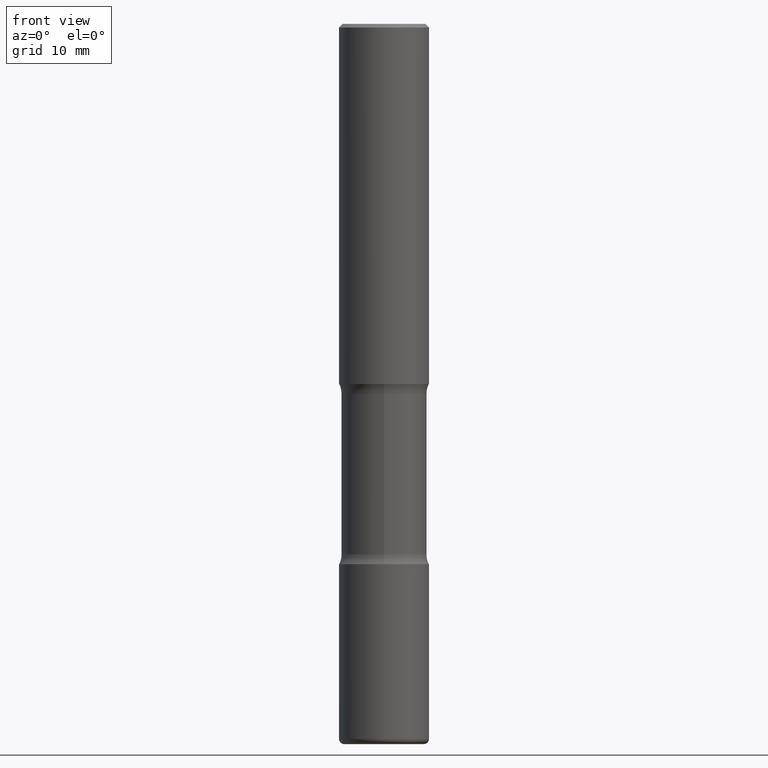
[diagram: clean part render]
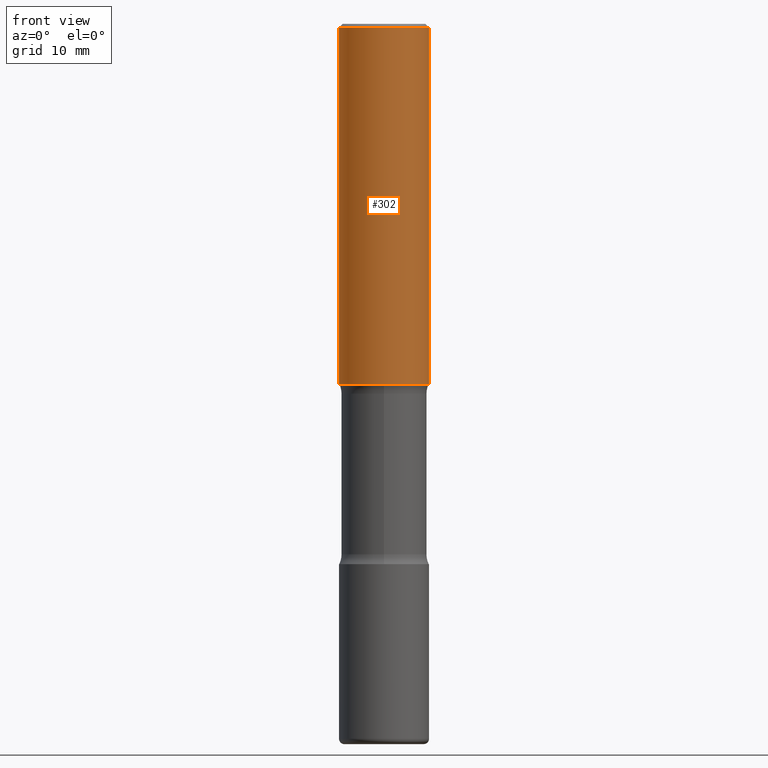
[diagram: same view with one face highlighted and labeled with its STEP entity id]
A machine part, front view. The second image highlights one B-rep face of the part: STEP entity #302.
In plain terms, the highlighted cylindrical surface (partial cylindrical patch) has radius 6.35 mm, axis along (-0, 0, 1).
Its self-contained STEP definition (entity closure, byte-faithful):
#37 = ORIENTED_EDGE ( 'NONE', *, *, #184, .F. ) ;
#47 = ORIENTED_EDGE ( 'NONE', *, *, #326, .F. ) ;
#59 = DIRECTION ( 'NONE',  ( -2.445468806185136877E-29, 3.491481338843145188E-15, 1.000000000000000000 ) ) ;
#72 = FACE_OUTER_BOUND ( 'NONE', #218, .T. ) ;
#93 = VERTEX_POINT ( 'NONE', #441 ) ;
#106 = DIRECTION ( 'NONE',  ( 1.000000000000000000, -6.982962677686265922E-15, 0.000000000000000000 ) ) ;
#112 = CARTESIAN_POINT ( 'NONE',  ( 0.2499999999999999167, -1.784954126219745400E-15, -0.02000000000000006981 ) ) ;
#123 = CARTESIAN_POINT ( 'NONE',  ( -0.2499999999999999167, 1.675911042644703182E-15, -0.02000000000000006981 ) ) ;
#151 = VECTOR ( 'NONE', #59, 39.37007874015748143 ) ;
#156 = DIRECTION ( 'NONE',  ( -2.445468806185136597E-29, 3.491481338843145583E-15, 1.000000000000000000 ) ) ;
#161 = CARTESIAN_POINT ( 'NONE',  ( -0.2500000000000000555, 1.776356839400250859E-15, -1.229733772563726866E-29 ) ) ;
#184 = EDGE_CURVE ( 'NONE', #93, #459, #450, .T. ) ;
#198 = DIRECTION ( 'NONE',  ( -2.445468806185136597E-29, 3.491481338843145583E-15, 1.000000000000000000 ) ) ;
#218 = EDGE_LOOP ( 'NONE', ( #37, #388, #353, #47 ) ) ;
#243 = CARTESIAN_POINT ( 'NONE',  ( 0.2500000000000000555, -1.745740669421567269E-15, 1.219044193948984228E-29 ) ) ;
#244 = VERTEX_POINT ( 'NONE', #247 ) ;
#246 = CARTESIAN_POINT ( 'NONE',  ( 4.890937612370289799E-31, -6.982962677686315028E-17, -0.02000000000000006981 ) ) ;
#247 = CARTESIAN_POINT ( 'NONE',  ( 0.2500000000000001665, -8.728703347107858632E-15, -2.000000000000000000 ) ) ;
#259 = VECTOR ( 'NONE', #330, 39.37007874015748143 ) ;
#302 = ADVANCED_FACE ( 'NONE', ( #72 ), #485, .T. ) ;
#319 = CIRCLE ( 'NONE', #349, 0.2499999999999999167 ) ;
#320 = DIRECTION ( 'NONE',  ( 1.000000000000000000, -6.982962677686267499E-15, 0.000000000000000000 ) ) ;
#326 = EDGE_CURVE ( 'NONE', #459, #358, #319, .T. ) ;
#328 = DIRECTION ( 'NONE',  ( -2.445468806185136597E-29, 3.491481338843145583E-15, 1.000000000000000000 ) ) ;
#329 = CIRCLE ( 'NONE', #453, 0.2500000000000001665 ) ;
#330 = DIRECTION ( 'NONE',  ( -2.445468806185136877E-29, 3.491481338843145188E-15, 1.000000000000000000 ) ) ;
#338 = AXIS2_PLACEMENT_3D ( 'NONE', #528, #156, #404 ) ;
#349 = AXIS2_PLACEMENT_3D ( 'NONE', #246, #328, #320 ) ;
#353 = ORIENTED_EDGE ( 'NONE', *, *, #389, .T. ) ;
#358 = VERTEX_POINT ( 'NONE', #112 ) ;
#388 = ORIENTED_EDGE ( 'NONE', *, *, #400, .T. ) ;
#389 = EDGE_CURVE ( 'NONE', #244, #358, #491, .T. ) ;
#400 = EDGE_CURVE ( 'NONE', #93, #244, #329, .T. ) ;
#404 = DIRECTION ( 'NONE',  ( 1.000000000000000000, -6.982962677686267499E-15, 4.876176775795935793E-29 ) ) ;
#441 = CARTESIAN_POINT ( 'NONE',  ( -0.2500000000000001665, -1.750039312831323809E-15, -2.000000000000000000 ) ) ;
#450 = LINE ( 'NONE', #161, #259 ) ;
#453 = AXIS2_PLACEMENT_3D ( 'NONE', #483, #198, #106 ) ;
#459 = VERTEX_POINT ( 'NONE', #123 ) ;
#483 = CARTESIAN_POINT ( 'NONE',  ( 4.890937612370273194E-29, -6.982962677686291165E-15, -2.000000000000000000 ) ) ;
#485 = CYLINDRICAL_SURFACE ( 'NONE', #338, 0.2500000000000000555 ) ;
#491 = LINE ( 'NONE', #243, #151 ) ;
#528 = CARTESIAN_POINT ( 'NONE',  ( 0.000000000000000000, 0.000000000000000000, 0.000000000000000000 ) ) ;